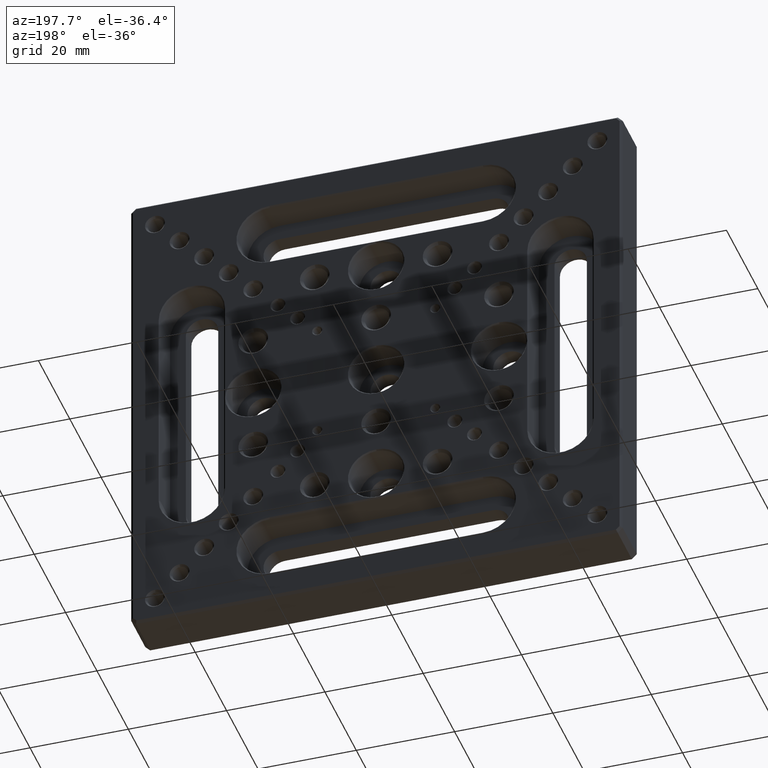
[diagram: clean part render]
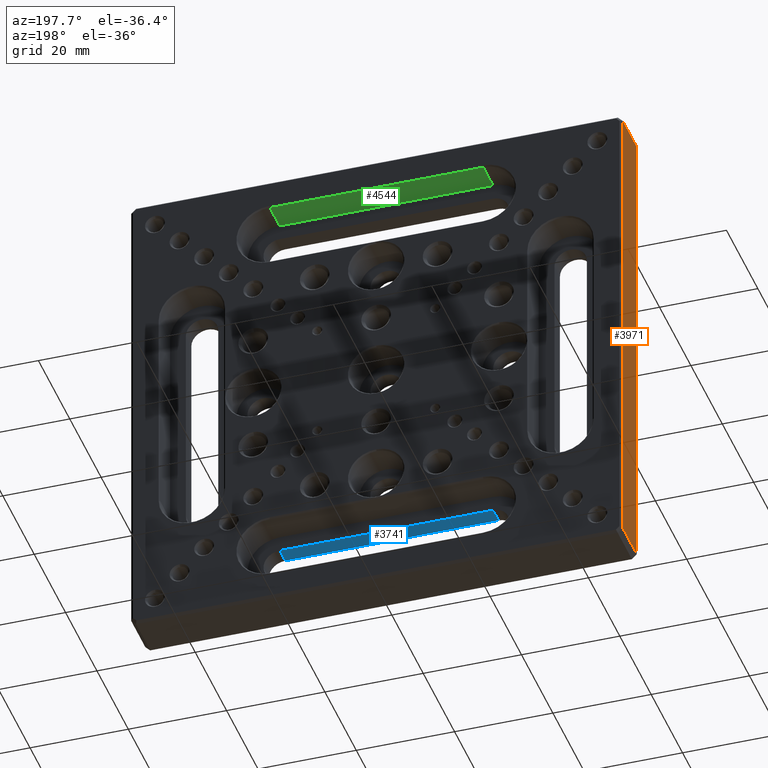
[diagram: same view with three faces highlighted in distinct colors, each labeled with its STEP entity id]
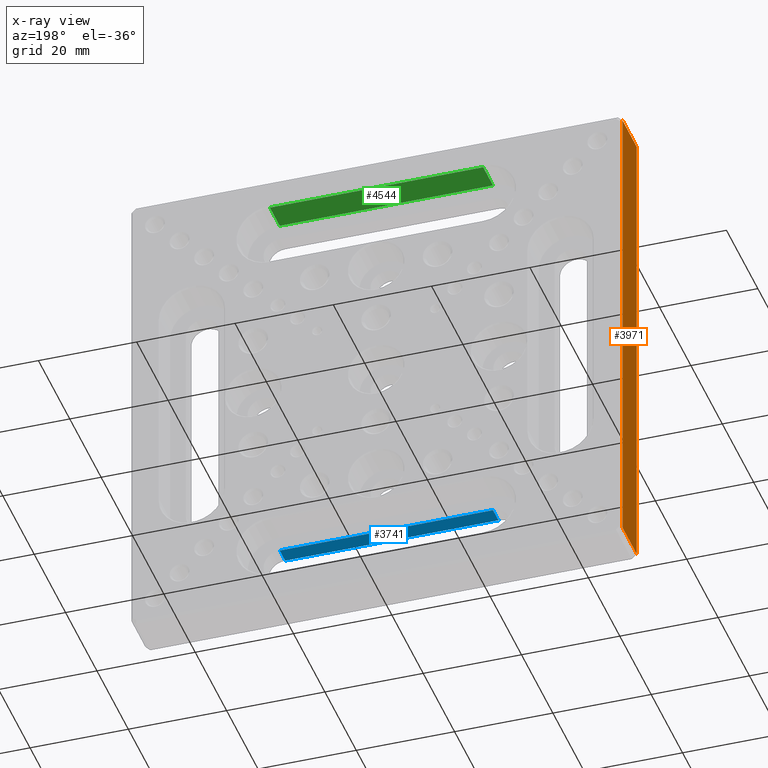
[diagram: x-ray of the same camera — body ghosted, the three highlighted faces saturated]
A machine part, auxiliary view with three faces highlighted in distinct colors.
The next image is the same camera in x-ray (body ghosted, the three faces saturated) — at least one of them is partly hidden behind the body in this view.
Their STEP definitions:

[orange] entity #3971 — the highlighted planar face has unit normal (1, 0, -0).
#72 = LINE ( 'NONE', #1620, #3438 ) ;
#84 = EDGE_CURVE ( 'NONE', #4767, #2333, #72, .T. ) ;
#106 = FACE_OUTER_BOUND ( 'NONE', #3480, .T. ) ;
#234 = ORIENTED_EDGE ( 'NONE', *, *, #3694, .T. ) ;
#284 = ORIENTED_EDGE ( 'NONE', *, *, #329, .T. ) ;
#329 = EDGE_CURVE ( 'NONE', #490, #4767, #3579, .T. ) ;
#387 = DIRECTION ( 'NONE',  ( 0.000000000000000000, -1.000000000000000000, 0.000000000000000000 ) ) ;
#402 = DIRECTION ( 'NONE',  ( 0.000000000000000000, 1.000000000000000000, 0.000000000000000000 ) ) ;
#430 = ORIENTED_EDGE ( 'NONE', *, *, #2749, .T. ) ;
#490 = VERTEX_POINT ( 'NONE', #586 ) ;
#565 = LINE ( 'NONE', #4412, #1577 ) ;
#586 = CARTESIAN_POINT ( 'NONE',  ( -49.99999999999999289, 0.5000000000000004441, 49.00000000000001421 ) ) ;
#807 = CARTESIAN_POINT ( 'NONE',  ( -49.99999999999999289, 10.00000000000000000, 49.00000000000001421 ) ) ;
#861 = VECTOR ( 'NONE', #387, 1000.000000000000000 ) ;
#1283 = DIRECTION ( 'NONE',  ( 1.000000000000000000, 0.000000000000000000, -1.387778780781445676E-16 ) ) ;
#1577 = VECTOR ( 'NONE', #3583, 1000.000000000000000 ) ;
#1620 = CARTESIAN_POINT ( 'NONE',  ( -50.00000000000000711, 9.500000000000000000, -48.99999999999997158 ) ) ;
#1961 = VECTOR ( 'NONE', #402, 1000.000000000000000 ) ;
#2333 = VERTEX_POINT ( 'NONE', #3905 ) ;
#2749 = EDGE_CURVE ( 'NONE', #2333, #4616, #3105, .T. ) ;
#2800 = AXIS2_PLACEMENT_3D ( 'NONE', #3221, #1283, #4016 ) ;
#2949 = ORIENTED_EDGE ( 'NONE', *, *, #84, .T. ) ;
#3105 = LINE ( 'NONE', #4758, #861 ) ;
#3183 = DIRECTION ( 'NONE',  ( -1.387778780781445676E-16, 0.000000000000000000, -1.000000000000000000 ) ) ;
#3221 = CARTESIAN_POINT ( 'NONE',  ( -50.00000000000000711, 10.00000000000000000, -49.99999999999998579 ) ) ;
#3438 = VECTOR ( 'NONE', #3183, 1000.000000000000000 ) ;
#3480 = EDGE_LOOP ( 'NONE', ( #430, #234, #284, #2949 ) ) ;
#3579 = LINE ( 'NONE', #807, #1961 ) ;
#3583 = DIRECTION ( 'NONE',  ( 1.387778780781445676E-16, 0.000000000000000000, 1.000000000000000000 ) ) ;
#3694 = EDGE_CURVE ( 'NONE', #4616, #490, #565, .T. ) ;
#3878 = CARTESIAN_POINT ( 'NONE',  ( -50.00000000000000711, 0.5000000000000004441, -48.99999999999997158 ) ) ;
#3905 = CARTESIAN_POINT ( 'NONE',  ( -50.00000000000000711, 9.500000000000000000, -48.99999999999997158 ) ) ;
#3971 = ADVANCED_FACE ( 'NONE', ( #106 ), #4780, .F. ) ;
#4016 = DIRECTION ( 'NONE',  ( -1.387778780781445676E-16, 0.000000000000000000, -1.000000000000000000 ) ) ;
#4412 = CARTESIAN_POINT ( 'NONE',  ( -50.00000000000000711, 0.5000000000000004441, -49.99999999999998579 ) ) ;
#4616 = VERTEX_POINT ( 'NONE', #3878 ) ;
#4758 = CARTESIAN_POINT ( 'NONE',  ( -50.00000000000000711, 10.00000000000000000, -48.99999999999997158 ) ) ;
#4760 = CARTESIAN_POINT ( 'NONE',  ( -49.99999999999999289, 9.500000000000000000, 49.00000000000001421 ) ) ;
#4767 = VERTEX_POINT ( 'NONE', #4760 ) ;
#4780 = PLANE ( 'NONE',  #2800 ) ;

[blue] entity #3741 — the highlighted planar face has unit normal (-0, 0, 1).
#146 = VECTOR ( 'NONE', #3415, 1000.000000000000000 ) ;
#730 = ORIENTED_EDGE ( 'NONE', *, *, #3124, .F. ) ;
#775 = EDGE_CURVE ( 'NONE', #3614, #4701, #4250, .T. ) ;
#853 = CARTESIAN_POINT ( 'NONE',  ( 21.70000000000000284, 3.499999999999999556, -34.20000000000000284 ) ) ;
#915 = CARTESIAN_POINT ( 'NONE',  ( -21.69999999999999574, 3.499999999999999556, -34.20000000000000284 ) ) ;
#985 = DIRECTION ( 'NONE',  ( -1.000000000000000000, 0.000000000000000000, -0.000000000000000000 ) ) ;
#1197 = EDGE_CURVE ( 'NONE', #1462, #3262, #3068, .T. ) ;
#1292 = DIRECTION ( 'NONE',  ( -0.000000000000000000, 0.000000000000000000, 1.000000000000000000 ) ) ;
#1346 = CARTESIAN_POINT ( 'NONE',  ( -21.69999999999999574, 0.000000000000000000, -34.20000000000000284 ) ) ;
#1462 = VERTEX_POINT ( 'NONE', #2986 ) ;
#1509 = CARTESIAN_POINT ( 'NONE',  ( 21.70000000000000284, 0.000000000000000000, -34.20000000000000284 ) ) ;
#1652 = EDGE_CURVE ( 'NONE', #3262, #4701, #2502, .T. ) ;
#1853 = CARTESIAN_POINT ( 'NONE',  ( -21.69999999999999574, 0.000000000000000000, -34.20000000000000284 ) ) ;
#2047 = FACE_OUTER_BOUND ( 'NONE', #3475, .T. ) ;
#2385 = AXIS2_PLACEMENT_3D ( 'NONE', #1346, #1292, #2455 ) ;
#2455 = DIRECTION ( 'NONE',  ( 1.000000000000000000, 0.000000000000000000, 0.000000000000000000 ) ) ;
#2502 = LINE ( 'NONE', #4076, #4527 ) ;
#2763 = DIRECTION ( 'NONE',  ( -0.000000000000000000, 1.000000000000000000, -0.000000000000000000 ) ) ;
#2986 = CARTESIAN_POINT ( 'NONE',  ( 21.70000000000000284, 0.000000000000000000, -34.20000000000000284 ) ) ;
#3068 = LINE ( 'NONE', #1509, #3174 ) ;
#3124 = EDGE_CURVE ( 'NONE', #3614, #1462, #4546, .T. ) ;
#3166 = ORIENTED_EDGE ( 'NONE', *, *, #1652, .F. ) ;
#3174 = VECTOR ( 'NONE', #2763, 1000.000000000000000 ) ;
#3262 = VERTEX_POINT ( 'NONE', #853 ) ;
#3415 = DIRECTION ( 'NONE',  ( 1.000000000000000000, 0.000000000000000000, 0.000000000000000000 ) ) ;
#3475 = EDGE_LOOP ( 'NONE', ( #3166, #3938, #730, #4729 ) ) ;
#3614 = VERTEX_POINT ( 'NONE', #4202 ) ;
#3696 = PLANE ( 'NONE',  #2385 ) ;
#3741 = ADVANCED_FACE ( 'NONE', ( #2047 ), #3696, .F. ) ;
#3938 = ORIENTED_EDGE ( 'NONE', *, *, #1197, .F. ) ;
#4076 = CARTESIAN_POINT ( 'NONE',  ( -21.69999999999999574, 3.499999999999999556, -34.20000000000000284 ) ) ;
#4187 = VECTOR ( 'NONE', #4676, 1000.000000000000000 ) ;
#4202 = CARTESIAN_POINT ( 'NONE',  ( -21.69999999999999574, 0.000000000000000000, -34.20000000000000284 ) ) ;
#4250 = LINE ( 'NONE', #4323, #4187 ) ;
#4323 = CARTESIAN_POINT ( 'NONE',  ( -21.69999999999999574, 0.000000000000000000, -34.20000000000000284 ) ) ;
#4527 = VECTOR ( 'NONE', #985, 1000.000000000000000 ) ;
#4546 = LINE ( 'NONE', #1853, #146 ) ;
#4676 = DIRECTION ( 'NONE',  ( -0.000000000000000000, 1.000000000000000000, -0.000000000000000000 ) ) ;
#4701 = VERTEX_POINT ( 'NONE', #915 ) ;
#4729 = ORIENTED_EDGE ( 'NONE', *, *, #775, .T. ) ;

[green] entity #4544 — the highlighted planar face has unit normal (-0, 0, 1).
#227 = CARTESIAN_POINT ( 'NONE',  ( -21.70000000000000284, 9.749999999999994671, 44.00000000000000000 ) ) ;
#451 = VECTOR ( 'NONE', #3054, 1000.000000000000000 ) ;
#494 = VERTEX_POINT ( 'NONE', #227 ) ;
#645 = EDGE_CURVE ( 'NONE', #494, #4508, #1867, .T. ) ;
#669 = DIRECTION ( 'NONE',  ( 1.000000000000000000, 0.000000000000000000, 0.000000000000000000 ) ) ;
#804 = DIRECTION ( 'NONE',  ( -0.000000000000000000, 1.000000000000000000, -0.000000000000000000 ) ) ;
#811 = CARTESIAN_POINT ( 'NONE',  ( -21.70000000000000284, 3.499999999999999556, 44.00000000000000000 ) ) ;
#939 = EDGE_CURVE ( 'NONE', #1368, #4508, #2725, .T. ) ;
#1052 = PLANE ( 'NONE',  #1673 ) ;
#1057 = EDGE_LOOP ( 'NONE', ( #4840, #1235, #4416, #2022 ) ) ;
#1235 = ORIENTED_EDGE ( 'NONE', *, *, #645, .T. ) ;
#1368 = VERTEX_POINT ( 'NONE', #3266 ) ;
#1568 = LINE ( 'NONE', #4311, #1586 ) ;
#1586 = VECTOR ( 'NONE', #2350, 1000.000000000000000 ) ;
#1673 = AXIS2_PLACEMENT_3D ( 'NONE', #2592, #4497, #669 ) ;
#1760 = FACE_OUTER_BOUND ( 'NONE', #1057, .T. ) ;
#1867 = LINE ( 'NONE', #4915, #4262 ) ;
#2022 = ORIENTED_EDGE ( 'NONE', *, *, #2678, .F. ) ;
#2258 = CARTESIAN_POINT ( 'NONE',  ( 21.70000000000000995, 9.749999999999994671, 44.00000000000000000 ) ) ;
#2350 = DIRECTION ( 'NONE',  ( -0.000000000000000000, 1.000000000000000000, -0.000000000000000000 ) ) ;
#2592 = CARTESIAN_POINT ( 'NONE',  ( -21.70000000000000284, 3.499999999999999556, 44.00000000000000000 ) ) ;
#2611 = LINE ( 'NONE', #4641, #451 ) ;
#2678 = EDGE_CURVE ( 'NONE', #4578, #1368, #2611, .T. ) ;
#2725 = LINE ( 'NONE', #4303, #4265 ) ;
#3054 = DIRECTION ( 'NONE',  ( 1.000000000000000000, 0.000000000000000000, 0.000000000000000000 ) ) ;
#3266 = CARTESIAN_POINT ( 'NONE',  ( 21.70000000000000995, 3.499999999999999556, 44.00000000000000000 ) ) ;
#4262 = VECTOR ( 'NONE', #5013, 1000.000000000000000 ) ;
#4265 = VECTOR ( 'NONE', #804, 1000.000000000000000 ) ;
#4303 = CARTESIAN_POINT ( 'NONE',  ( 21.70000000000000995, 3.499999999999999556, 44.00000000000000000 ) ) ;
#4311 = CARTESIAN_POINT ( 'NONE',  ( -21.70000000000000284, 3.499999999999999556, 44.00000000000000000 ) ) ;
#4416 = ORIENTED_EDGE ( 'NONE', *, *, #939, .F. ) ;
#4497 = DIRECTION ( 'NONE',  ( -0.000000000000000000, 0.000000000000000000, 1.000000000000000000 ) ) ;
#4508 = VERTEX_POINT ( 'NONE', #2258 ) ;
#4544 = ADVANCED_FACE ( 'NONE', ( #1760 ), #1052, .F. ) ;
#4578 = VERTEX_POINT ( 'NONE', #811 ) ;
#4623 = EDGE_CURVE ( 'NONE', #4578, #494, #1568, .T. ) ;
#4641 = CARTESIAN_POINT ( 'NONE',  ( -21.70000000000000284, 3.499999999999999556, 44.00000000000000000 ) ) ;
#4840 = ORIENTED_EDGE ( 'NONE', *, *, #4623, .T. ) ;
#4915 = CARTESIAN_POINT ( 'NONE',  ( 21.70000000000000995, 9.749999999999994671, 44.00000000000000000 ) ) ;
#5013 = DIRECTION ( 'NONE',  ( 1.000000000000000000, 0.000000000000000000, 0.000000000000000000 ) ) ;